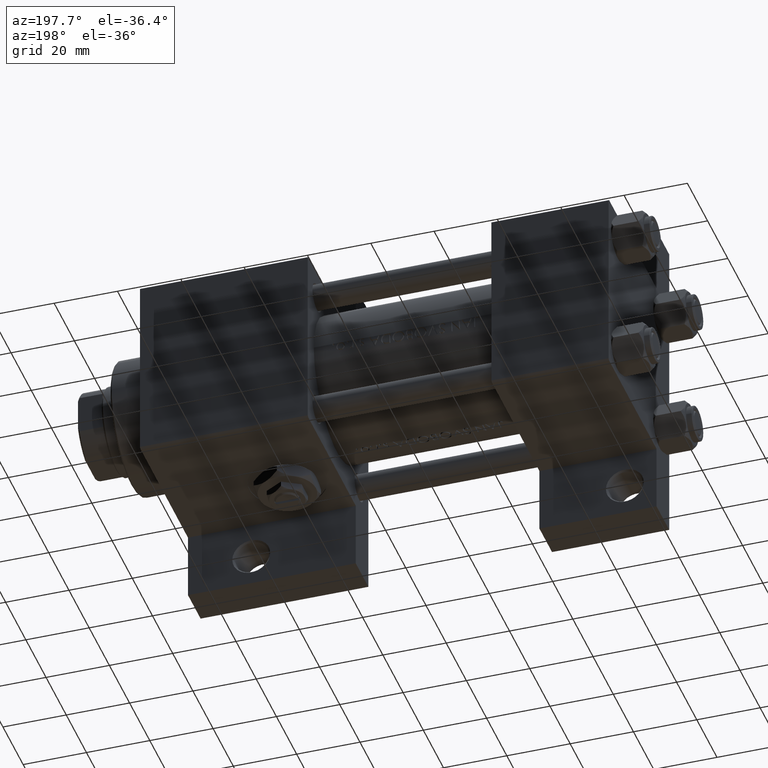
[diagram: clean part render]
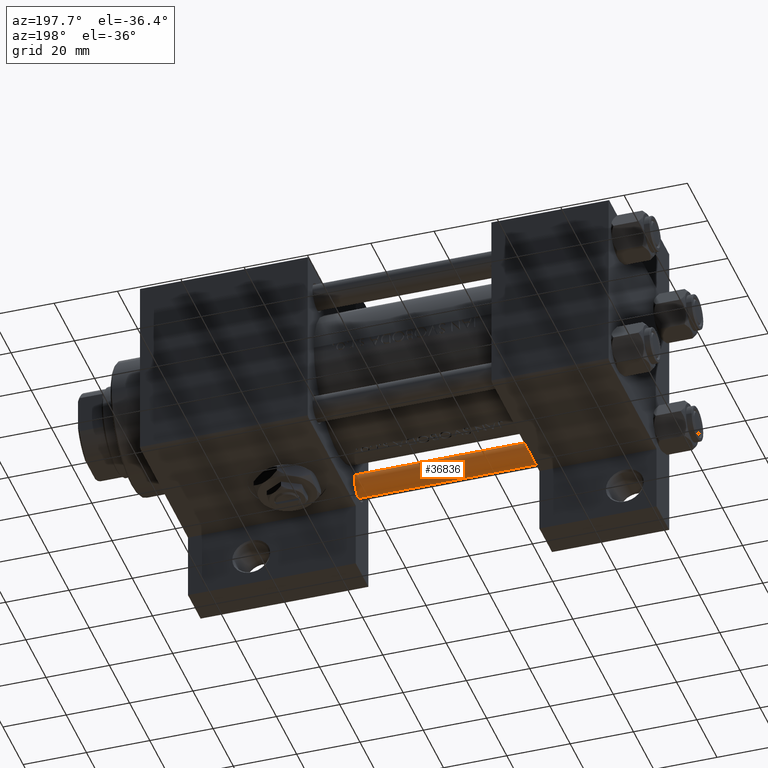
[diagram: same view with one face highlighted and labeled with its STEP entity id]
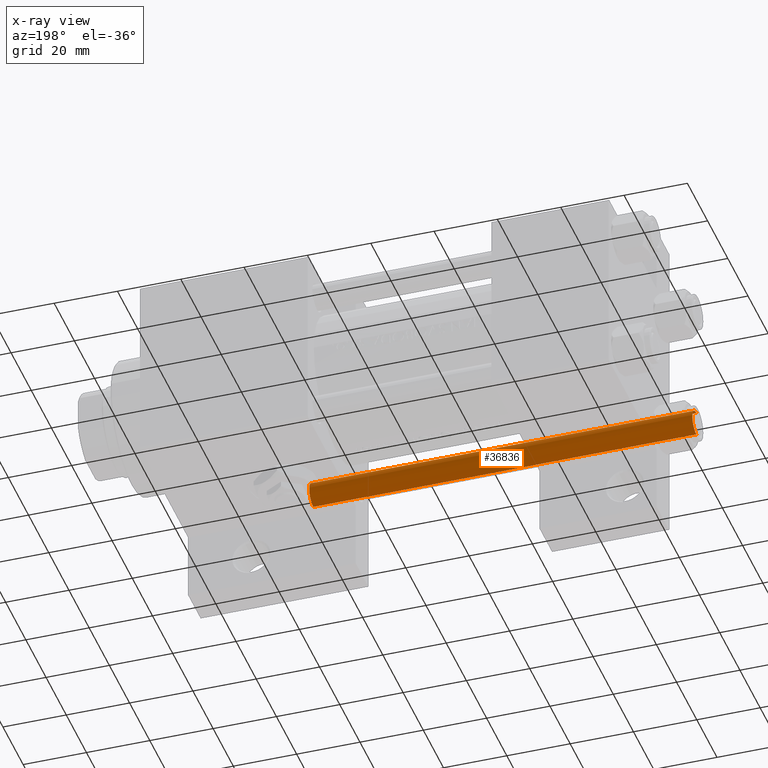
[diagram: x-ray of the same camera — body ghosted, the highlighted face saturated]
A machine part, auxiliary view. The second image highlights one B-rep face of the part: STEP entity #36836.
The next image is the same camera in x-ray: the body ghosted, the highlighted face saturated — about 0% of this face is hidden behind the body in this view.
In plain terms, the highlighted cylindrical surface (edge-blend (fillet) strip) has radius 4 mm, axis along (-1, 0, 0).
Its self-contained STEP definition (entity closure, byte-faithful):
#213 = EDGE_CURVE ( 'NONE', #13678, #26284, #28735, .T. ) ;
#220 = DIRECTION ( 'NONE',  ( 0.000000000000000000, 0.000000000000000000, -1.000000000000000000 ) ) ;
#380 = AXIS2_PLACEMENT_3D ( 'NONE', #30545, #23054, #12095 ) ;
#797 = ORIENTED_EDGE ( 'NONE', *, *, #22646, .F. ) ;
#2092 = CARTESIAN_POINT ( 'NONE',  ( 4.000000000000000000, 4.898587196589411843E-16, 0.5000000000000559552 ) ) ;
#3326 = AXIS2_PLACEMENT_3D ( 'NONE', #34627, #220, #22426 ) ;
#5553 = CARTESIAN_POINT ( 'NONE',  ( -4.000000000000000000, 0.000000000000000000, 122.0000000000000000 ) ) ;
#7309 = EDGE_CURVE ( 'NONE', #31237, #13678, #8106, .T. ) ;
#8106 = CIRCLE ( 'NONE', #3326, 4.000000000000000000 ) ;
#10605 = DIRECTION ( 'NONE',  ( -1.000000000000000000, 0.000000000000000000, 0.000000000000000000 ) ) ;
#12066 = ORIENTED_EDGE ( 'NONE', *, *, #14725, .T. ) ;
#12095 = DIRECTION ( 'NONE',  ( 1.000000000000000000, 0.000000000000000000, 0.000000000000000000 ) ) ;
#13678 = VERTEX_POINT ( 'NONE', #43294 ) ;
#14360 = DIRECTION ( 'NONE',  ( -0.000000000000000000, -0.000000000000000000, -1.000000000000000000 ) ) ;
#14725 = EDGE_CURVE ( 'NONE', #26284, #43961, #34629, .T. ) ;
#17519 = DIRECTION ( 'NONE',  ( -0.000000000000000000, -0.000000000000000000, -1.000000000000000000 ) ) ;
#20319 = CARTESIAN_POINT ( 'NONE',  ( -4.000000000000000000, 0.000000000000000000, 0.5000000000000559552 ) ) ;
#22179 = DIRECTION ( 'NONE',  ( -0.000000000000000000, -0.000000000000000000, -1.000000000000000000 ) ) ;
#22426 = DIRECTION ( 'NONE',  ( 1.000000000000000000, 0.000000000000000000, 0.000000000000000000 ) ) ;
#22646 = EDGE_CURVE ( 'NONE', #31237, #43961, #44648, .T. ) ;
#23054 = DIRECTION ( 'NONE',  ( -0.000000000000000000, -0.000000000000000000, 1.000000000000000000 ) ) ;
#23616 = VECTOR ( 'NONE', #22179, 1000.000000000000000 ) ;
#25389 = VECTOR ( 'NONE', #17519, 1000.000000000000000 ) ;
#26284 = VERTEX_POINT ( 'NONE', #20319 ) ;
#28735 = LINE ( 'NONE', #5553, #25389 ) ;
#30545 = CARTESIAN_POINT ( 'NONE',  ( 0.000000000000000000, 0.000000000000000000, 0.5000000000000559552 ) ) ;
#31237 = VERTEX_POINT ( 'NONE', #47686 ) ;
#33294 = FACE_OUTER_BOUND ( 'NONE', #38931, .T. ) ;
#34627 = CARTESIAN_POINT ( 'NONE',  ( 0.000000000000000000, 0.000000000000000000, 121.5000000000000426 ) ) ;
#34629 = CIRCLE ( 'NONE', #380, 4.000000000000000000 ) ;
#36836 = ADVANCED_FACE ( 'NONE', ( #33294 ), #48513, .T. ) ;
#37264 = CARTESIAN_POINT ( 'NONE',  ( 0.000000000000000000, 0.000000000000000000, 122.0000000000000000 ) ) ;
#38931 = EDGE_LOOP ( 'NONE', ( #797, #46216, #42016, #12066 ) ) ;
#42016 = ORIENTED_EDGE ( 'NONE', *, *, #213, .T. ) ;
#43294 = CARTESIAN_POINT ( 'NONE',  ( -4.000000000000000000, 0.000000000000000000, 121.5000000000000426 ) ) ;
#43961 = VERTEX_POINT ( 'NONE', #2092 ) ;
#44648 = LINE ( 'NONE', #45627, #23616 ) ;
#45627 = CARTESIAN_POINT ( 'NONE',  ( 4.000000000000000000, 4.898587196589411843E-16, 122.0000000000000000 ) ) ;
#46216 = ORIENTED_EDGE ( 'NONE', *, *, #7309, .T. ) ;
#47686 = CARTESIAN_POINT ( 'NONE',  ( 4.000000000000000000, 4.898587196589411843E-16, 121.5000000000000426 ) ) ;
#47924 = AXIS2_PLACEMENT_3D ( 'NONE', #37264, #14360, #10605 ) ;
#48513 = CYLINDRICAL_SURFACE ( 'NONE', #47924, 4.000000000000000000 ) ;